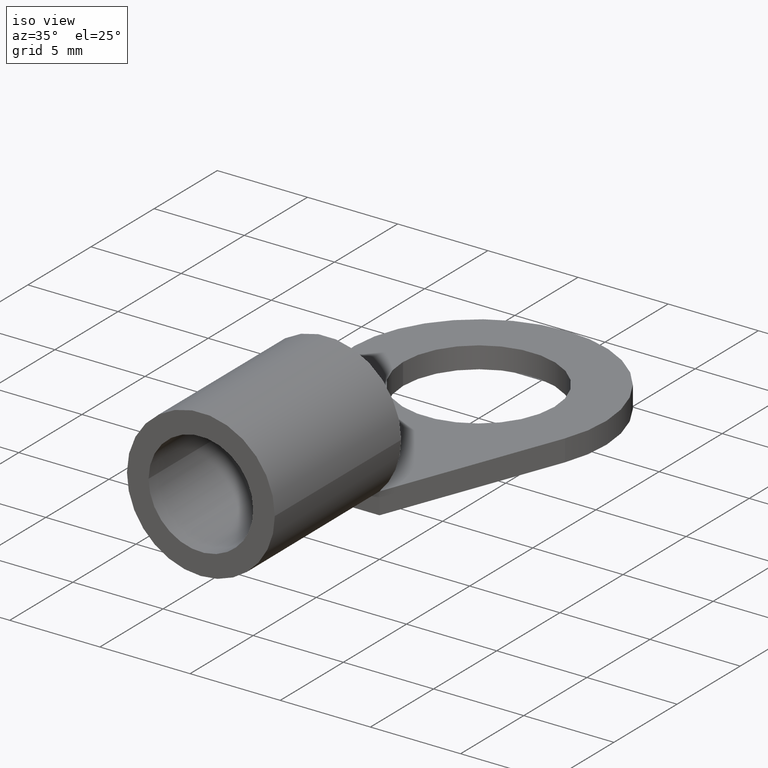
[diagram: clean part render]
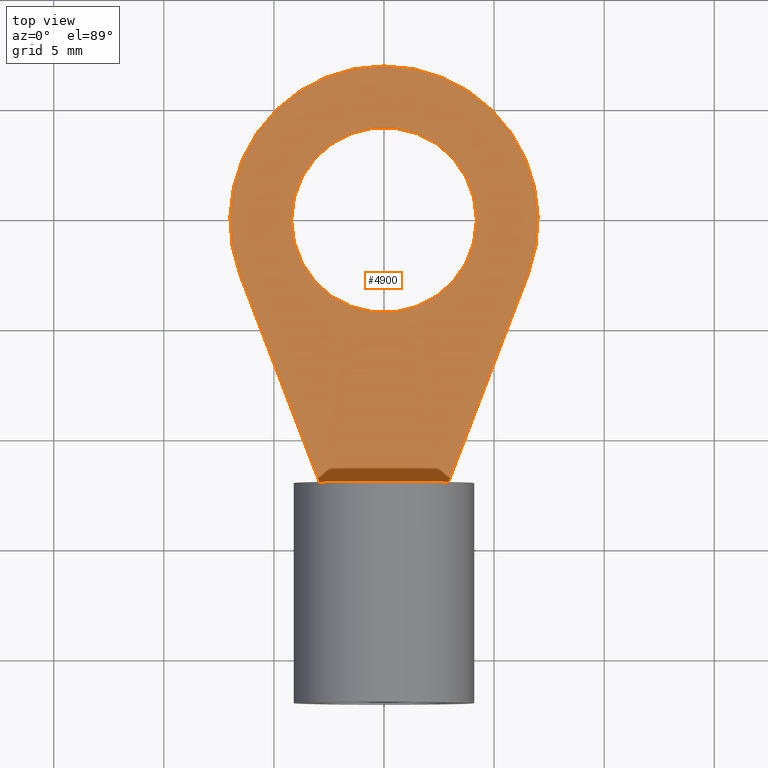
[diagram: tour spotlight — one face highlighted and labeled with its STEP entity id]
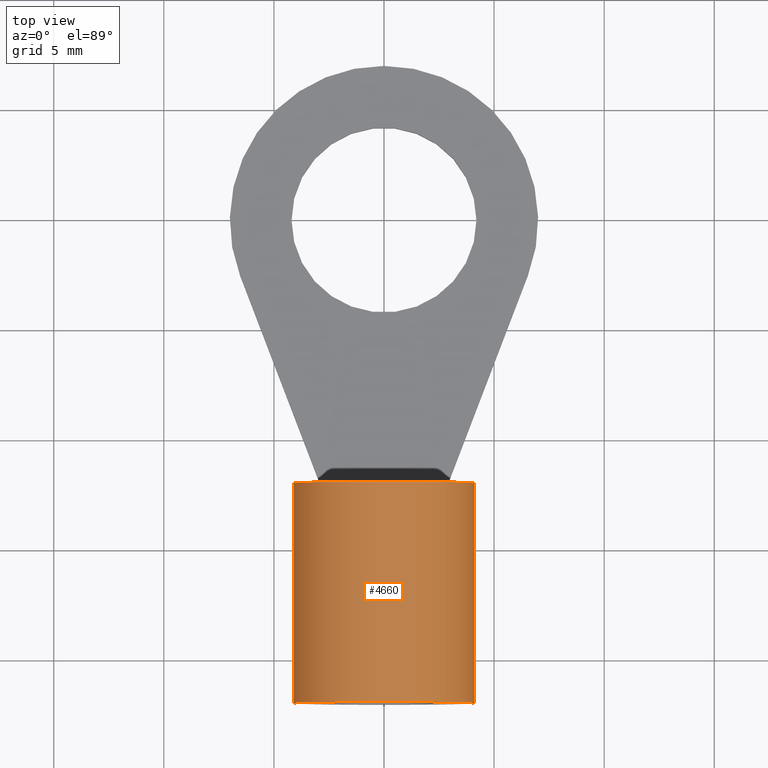
[diagram: tour spotlight — one face highlighted and labeled with its STEP entity id]
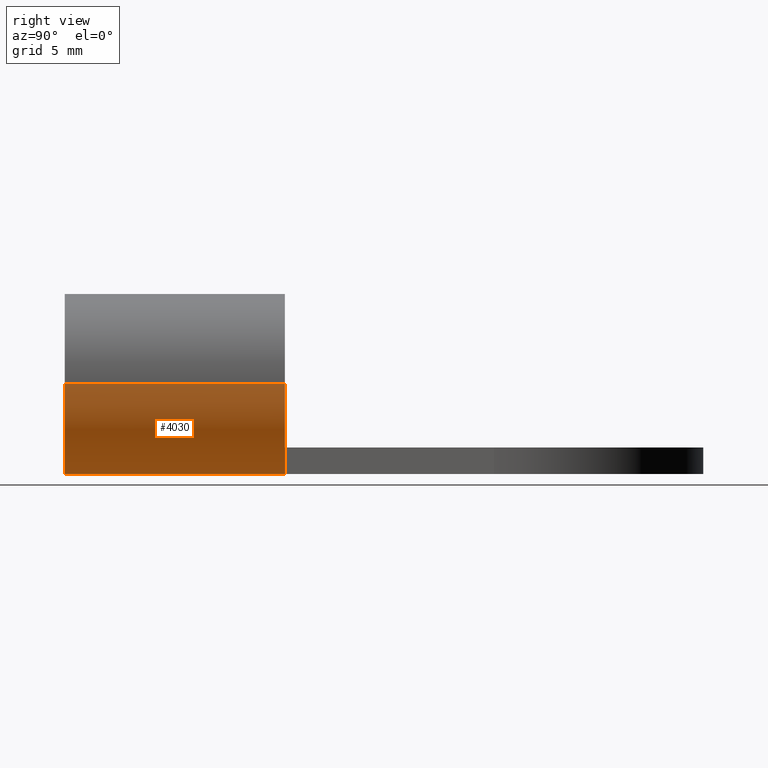
[diagram: tour spotlight — one face highlighted and labeled with its STEP entity id]
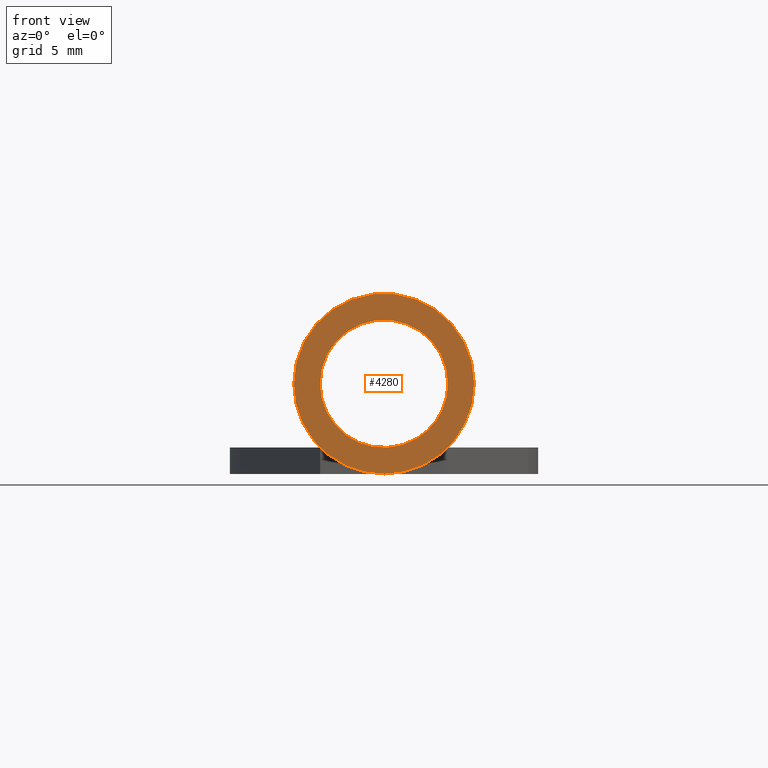
[diagram: tour spotlight — one face highlighted and labeled with its STEP entity id]
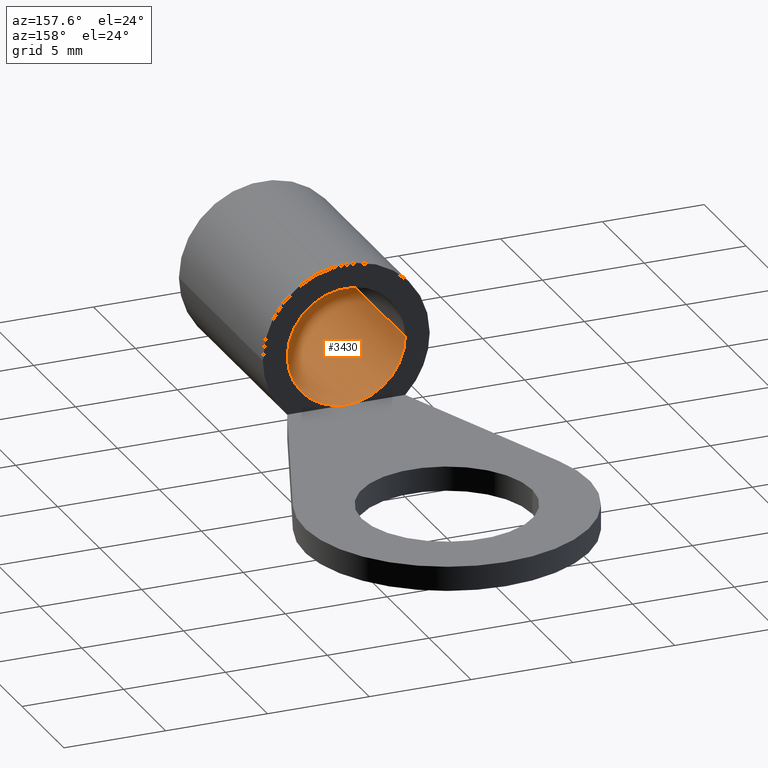
[diagram: tour spotlight — one face highlighted and labeled with its STEP entity id]
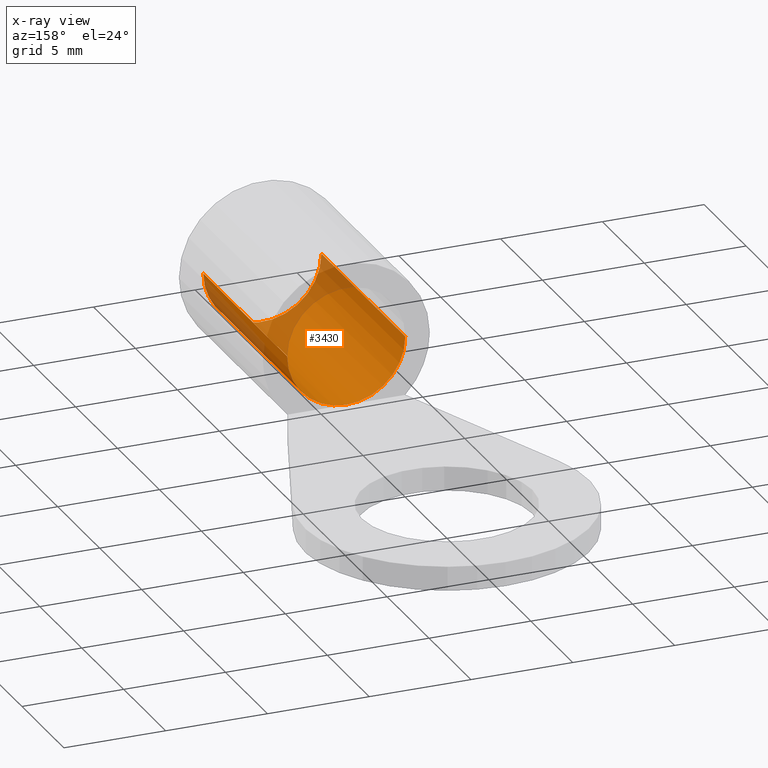
[diagram: x-ray of the same camera — body ghosted, this tour face saturated]
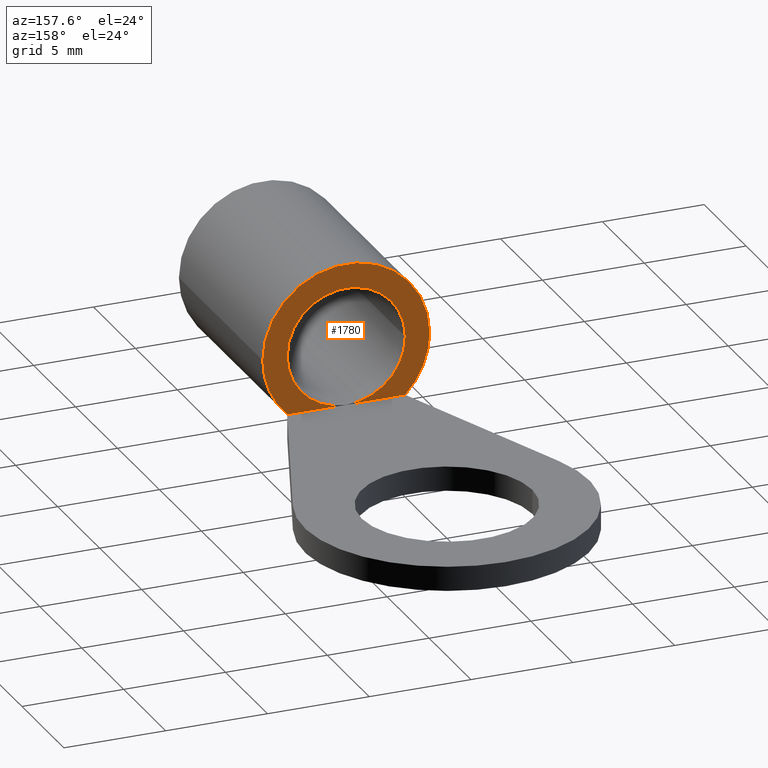
[diagram: tour spotlight — one face highlighted and labeled with its STEP entity id]
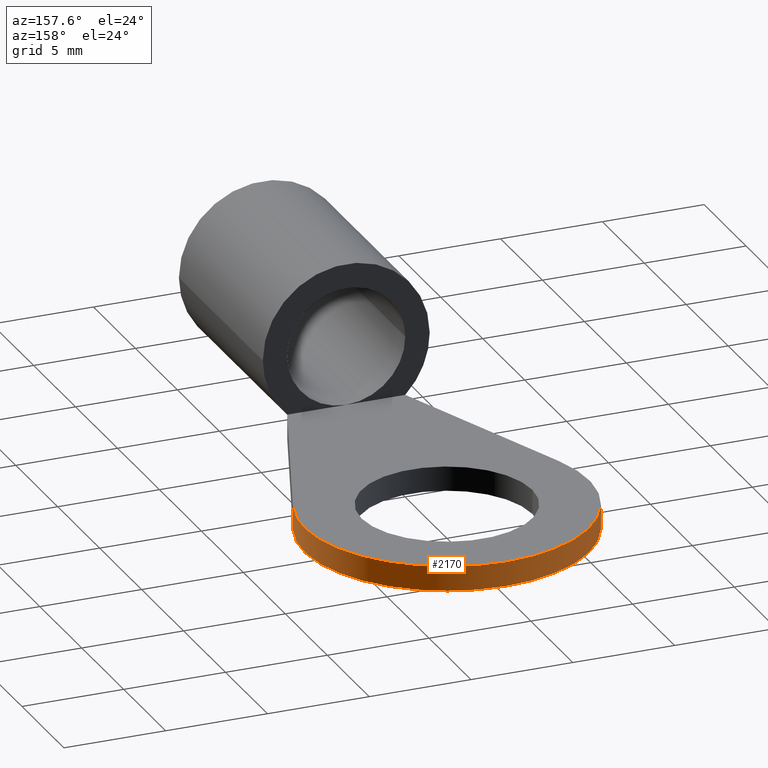
[diagram: tour spotlight — one face highlighted and labeled with its STEP entity id]
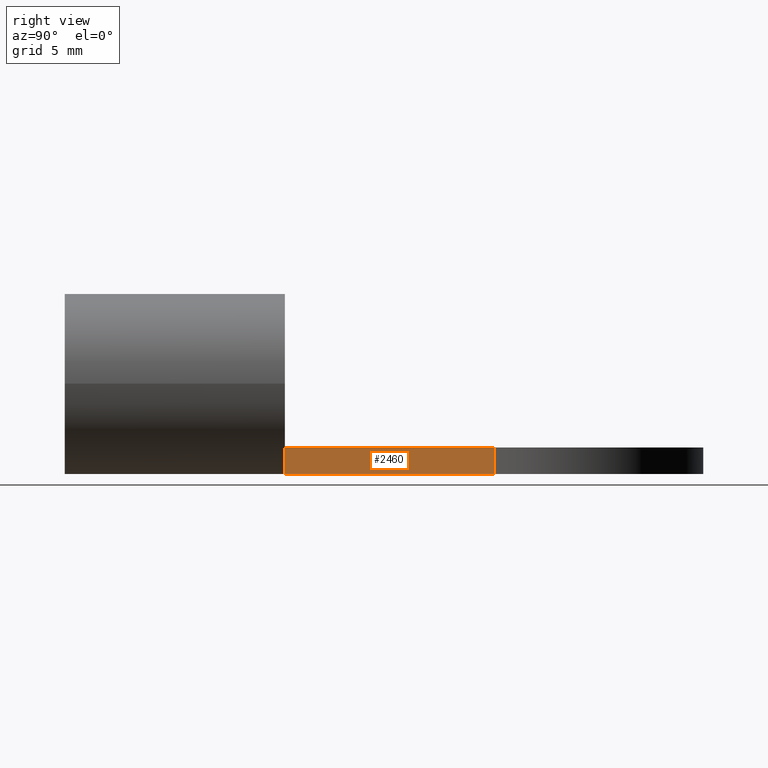
[diagram: tour spotlight — one face highlighted and labeled with its STEP entity id]
A machine part: a face-by-face anatomy tour. The part has 15 B-rep faces; the first image is the clean iso view, then the 8 largest visible faces are spotlighted one at a time (largest first), each with its STEP entity span.

Face 1 — top view, entity #4900. In plain terms, the highlighted planar face has unit normal (0, -0, -1).
Definition (entity closure, byte-faithful):
#120=CARTESIAN_POINT('',(8.19005202557302,214.095395351223,
127.011534287231));
#130=VERTEX_POINT('',#120);
#160=CARTESIAN_POINT('',(7.55918008017284,210.003085372182,
126.307972190502));
#170=DIRECTION('',(-5.91634389396356E-9,0.169437138749457,
-0.985540996616781));
#180=DIRECTION('',(0.150207606047662,0.974359518819137,0.167514784935453
));
#190=AXIS2_PLACEMENT_3D('',#160,#170,#180);
#200=CIRCLE('',#190,4.2);
#210=CARTESIAN_POINT('',(6.92830813477266,205.910775393142,
125.604410093773));
#220=VERTEX_POINT('',#210);
#230=EDGE_CURVE('',#220,#130,#200,.T.);
#1140=EDGE_CURVE('',#130,#220,#200,.T.);
#1430=CARTESIAN_POINT('',(-4.30467364500014,211.779514405453,
126.613381223524));
#1440=VERTEX_POINT('',#1430);
#1470=CARTESIAN_POINT('',(-36.9631262520451,-0.0677748554997828,
90.1919654993604));
#1480=DIRECTION('',(-0.150207606047678,-0.974359518819134,
-0.167514784935453));
#1490=VECTOR('',#1480,1.);
#1500=LINE('',#1470,#1490);
#1510=CARTESIAN_POINT('',(-3.86907158746191,214.605157010029,
127.099174099836));
#1520=VERTEX_POINT('',#1510);
#1530=EDGE_CURVE('',#1520,#1440,#1500,.T.);
#1680=CARTESIAN_POINT('',(-4.74027570253843,208.953871800878,
126.127588347211));
#1690=VERTEX_POINT('',#1680);
#1720=EDGE_CURVE('',#1440,#1690,#1500,.T.);
#1950=CARTESIAN_POINT('',(4.10211750838229,204.004328097907,
125.276648022719));
#1960=VERTEX_POINT('',#1950);
#2040=CARTESIAN_POINT('',(6.06592736087541,216.74307597676,
127.466731426285));
#2050=VERTEX_POINT('',#2040);
#2080=CARTESIAN_POINT('',(7.55918008017284,210.003085372182,
126.307972190502));
#2090=DIRECTION('',(-5.91634389571428E-9,0.169437138749457,
-0.985540996616781));
#2100=DIRECTION('',(1.,5.42947599304575E-9,-5.06969170810309E-9));
#2110=AXIS2_PLACEMENT_3D('',#2080,#2090,#2100);
#2120=CIRCLE('',#2110,7.);
#2130=EDGE_CURVE('',#2050,#1960,#2120,.T.);
#2380=CARTESIAN_POINT('',(0.,215.437745073046,127.242315092193));
#2390=DIRECTION('',(0.976981986719146,0.210237397147532,
0.0361446326159286));
#2400=VECTOR('',#2390,1.);
#2410=LINE('',#2380,#2400);
#2420=EDGE_CURVE('',#1520,#2050,#2410,.T.);
#2670=CARTESIAN_POINT('',(0.,206.300494915889,125.671411874588));
#2680=DIRECTION('',(-0.869537976951975,0.486725269466766,
0.0836792608761059));
#2690=VECTOR('',#2680,1.);
#2700=LINE('',#2670,#2690);
#2710=EDGE_CURVE('',#1960,#1690,#2700,.T.);
#4740=CARTESIAN_POINT('',(7.72299772201758,212.279594310728,
126.699356375675));
#4750=DIRECTION('',(5.91634389036865E-9,-0.169437138749457,
0.985540996616781));
#4760=DIRECTION('',(1.,5.42947597823552E-9,-5.06969170522524E-9));
#4770=AXIS2_PLACEMENT_3D('',#4740,#4750,#4760);
#4780=PLANE('',#4770);
#4790=ORIENTED_EDGE('',*,*,#2420,.T.);
#4800=ORIENTED_EDGE('',*,*,#1530,.F.);
#4810=ORIENTED_EDGE('',*,*,#1720,.F.);
#4820=ORIENTED_EDGE('',*,*,#2710,.T.);
#4830=ORIENTED_EDGE('',*,*,#2130,.T.);
#4840=EDGE_LOOP('',(#4830,#4820,#4810,#4800,#4790));
#4850=FACE_OUTER_BOUND('',#4840,.T.);
#4860=ORIENTED_EDGE('',*,*,#1140,.F.);
#4870=ORIENTED_EDGE('',*,*,#230,.F.);
#4880=EDGE_LOOP('',(#4870,#4860));
#4890=FACE_BOUND('',#4880,.T.);
#4900=ADVANCED_FACE('',(#4850,#4890),#4780,.F.);

Face 2 — top view, entity #4660. In plain terms, the highlighted cylindrical surface (partial cylindrical patch) has radius 4.1 mm, axis along (0, -1, -0).
Definition (entity closure, byte-faithful):
#1550=CARTESIAN_POINT('',(-4.30467366215757,212.270882107827,
123.755312333335));
#1560=DIRECTION('',(-0.98865447709775,0.148035752772574,
0.0254507527517702));
#1570=DIRECTION('',(0.150207606047678,0.974359518819134,
0.167514784935453));
#1580=AXIS2_PLACEMENT_3D('',#1550,#1560,#1570);
#1590=CIRCLE('',#1580,4.1);
#1600=CARTESIAN_POINT('',(-3.68882247736209,216.265756134985,
124.44212295157));
#1610=VERTEX_POINT('',#1600);
#1640=CARTESIAN_POINT('',(-4.92052484695305,208.276008080668,
123.068501715099));
#1650=VERTEX_POINT('',#1640);
#1660=EDGE_CURVE('',#1610,#1650,#1590,.T.);
#3700=CARTESIAN_POINT('',(-14.1912184331351,213.751239635553,
124.009819860852));
#3710=DIRECTION('',(-0.98865447709775,0.148035752772574,
0.0254507527517702));
#3720=DIRECTION('',(0.150207606047678,0.974359518819134,
0.167514784935453));
#3730=AXIS2_PLACEMENT_3D('',#3700,#3710,#3720);
#3740=CIRCLE('',#3730,4.1);
#3770=CARTESIAN_POINT('',(-13.5753672483396,217.746113662711,
124.696630479088));
#3780=VERTEX_POINT('',#3770);
#3810=CARTESIAN_POINT('',(-3.68882247736209,216.265756134985,
124.44212295157));
#3820=DIRECTION('',(-0.98865447709775,0.148035752772574,
0.0254507527517702));
#3830=VECTOR('',#3820,1.);
#3840=LINE('',#3810,#3830);
#3850=EDGE_CURVE('',#1610,#3780,#3840,.T.);
#3910=CARTESIAN_POINT('',(-4.92052484695305,208.276008080668,
123.068501715099));
#3920=DIRECTION('',(-0.98865447709775,0.148035752772574,
0.0254507527517702));
#3930=VECTOR('',#3920,1.);
#3940=LINE('',#3910,#3930);
#3950=CARTESIAN_POINT('',(-14.8070696179306,209.756365608394,
123.323009242617));
#3960=VERTEX_POINT('',#3950);
#3970=EDGE_CURVE('',#1650,#3960,#3940,.T.);
#4160=EDGE_CURVE('',#3780,#3960,#3740,.T.);
#4550=CARTESIAN_POINT('',(-4.30467366215757,212.270882107827,
123.755312333335));
#4560=DIRECTION('',(-0.98865447709775,0.148035752772574,
0.0254507527517702));
#4570=DIRECTION('',(0.150207606047678,0.974359518819134,
0.167514784935453));
#4580=AXIS2_PLACEMENT_3D('',#4550,#4560,#4570);
#4590=CYLINDRICAL_SURFACE('',#4580,4.1);
#4600=ORIENTED_EDGE('',*,*,#1660,.T.);
#4610=ORIENTED_EDGE('',*,*,#3850,.F.);
#4620=ORIENTED_EDGE('',*,*,#4160,.F.);
#4630=ORIENTED_EDGE('',*,*,#3970,.T.);
#4640=EDGE_LOOP('',(#4630,#4620,#4610,#4600));
#4650=FACE_OUTER_BOUND('',#4640,.T.);
#4660=ADVANCED_FACE('',(#4650),#4590,.T.);

Face 3 — right view, entity #4030. In plain terms, the highlighted cylindrical surface (partial cylindrical patch) has radius 4.1 mm, axis along (0, -1, -0).
Definition (entity closure, byte-faithful):
#610=CARTESIAN_POINT('',(-4.30467363790056,211.576189838954,
127.796030419464));
#620=VERTEX_POINT('',#610);
#1510=CARTESIAN_POINT('',(-3.86907158746191,214.605157010029,
127.099174099836));
#1520=VERTEX_POINT('',#1510);
#1550=CARTESIAN_POINT('',(-4.30467366215757,212.270882107827,
123.755312333335));
#1560=DIRECTION('',(-0.98865447709775,0.148035752772574,
0.0254507527517702));
#1570=DIRECTION('',(0.150207606047678,0.974359518819134,
0.167514784935453));
#1580=AXIS2_PLACEMENT_3D('',#1550,#1560,#1570);
#1590=CIRCLE('',#1580,4.1);
#1600=CARTESIAN_POINT('',(-3.68882247736209,216.265756134985,
124.44212295157));
#1610=VERTEX_POINT('',#1600);
#1620=EDGE_CURVE('',#1520,#1610,#1590,.T.);
#1640=CARTESIAN_POINT('',(-4.92052484695305,208.276008080668,
123.068501715099));
#1650=VERTEX_POINT('',#1640);
#1680=CARTESIAN_POINT('',(-4.74027570253843,208.953871800878,
126.127588347211));
#1690=VERTEX_POINT('',#1680);
#1700=EDGE_CURVE('',#1650,#1690,#1590,.T.);
#2900=CARTESIAN_POINT('',(-4.30467366215756,212.270882107827,
123.755312333335));
#2910=DIRECTION('',(-0.98865447709775,0.148035752772574,
0.0254507527517702));
#2920=DIRECTION('',(0.150207606047678,0.974359518819134,
0.167514784935453));
#2930=AXIS2_PLACEMENT_3D('',#2900,#2910,#2920);
#2940=CIRCLE('',#2930,4.1);
#2950=EDGE_CURVE('',#1690,#620,#2940,.T.);
#3530=EDGE_CURVE('',#620,#1520,#2940,.T.);
#3650=CARTESIAN_POINT('',(-4.30467366215757,212.270882107827,
123.755312333335));
#3660=DIRECTION('',(-0.98865447709775,0.148035752772574,
0.0254507527517702));
#3670=DIRECTION('',(0.150207606047678,0.974359518819134,
0.167514784935453));
#3680=AXIS2_PLACEMENT_3D('',#3650,#3660,#3670);
#3690=CYLINDRICAL_SURFACE('',#3680,4.1);
#3700=CARTESIAN_POINT('',(-14.1912184331351,213.751239635553,
124.009819860852));
#3710=DIRECTION('',(-0.98865447709775,0.148035752772574,
0.0254507527517702));
#3720=DIRECTION('',(0.150207606047678,0.974359518819134,
0.167514784935453));
#3730=AXIS2_PLACEMENT_3D('',#3700,#3710,#3720);
#3740=CIRCLE('',#3730,4.1);
#3750=CARTESIAN_POINT('',(-14.1912184088781,213.05654736668,
128.050537946981));
#3760=VERTEX_POINT('',#3750);
#3770=CARTESIAN_POINT('',(-13.5753672483396,217.746113662711,
124.696630479088));
#3780=VERTEX_POINT('',#3770);
#3790=EDGE_CURVE('',#3760,#3780,#3740,.T.);
#3800=ORIENTED_EDGE('',*,*,#3790,.F.);
#3810=CARTESIAN_POINT('',(-3.68882247736209,216.265756134985,
124.44212295157));
#3820=DIRECTION('',(-0.98865447709775,0.148035752772574,
0.0254507527517702));
#3830=VECTOR('',#3820,1.);
#3840=LINE('',#3810,#3830);
#3850=EDGE_CURVE('',#1610,#3780,#3840,.T.);
#3860=ORIENTED_EDGE('',*,*,#3850,.T.);
#3870=ORIENTED_EDGE('',*,*,#1620,.T.);
#3880=ORIENTED_EDGE('',*,*,#3530,.T.);
#3890=ORIENTED_EDGE('',*,*,#2950,.T.);
#3900=ORIENTED_EDGE('',*,*,#1700,.T.);
#3910=CARTESIAN_POINT('',(-4.92052484695305,208.276008080668,
123.068501715099));
#3920=DIRECTION('',(-0.98865447709775,0.148035752772574,
0.0254507527517702));
#3930=VECTOR('',#3920,1.);
#3940=LINE('',#3910,#3930);
#3950=CARTESIAN_POINT('',(-14.8070696179306,209.756365608394,
123.323009242617));
#3960=VERTEX_POINT('',#3950);
#3970=EDGE_CURVE('',#1650,#3960,#3940,.T.);
#3980=ORIENTED_EDGE('',*,*,#3970,.F.);
#3990=EDGE_CURVE('',#3960,#3760,#3740,.T.);
#4000=ORIENTED_EDGE('',*,*,#3990,.F.);
#4010=EDGE_LOOP('',(#4000,#3980,#3900,#3890,#3880,#3870,#3860,#3800));
#4020=FACE_OUTER_BOUND('',#4010,.T.);
#4030=ADVANCED_FACE('',(#4020),#3690,.T.);

Face 4 — front view, entity #4280. In plain terms, the highlighted planar face has unit normal (0, -1, -0).
Definition (entity closure, byte-faithful):
#3160=CARTESIAN_POINT('',(-14.6268204906733,210.925597030977,
123.52402698454));
#3170=VERTEX_POINT('',#3160);
#3260=CARTESIAN_POINT('',(-13.7556163755968,216.576882240128,
124.495612737165));
#3270=VERTEX_POINT('',#3260);
#3300=CARTESIAN_POINT('',(-14.1912184331351,213.751239635553,
124.009819860852));
#3310=DIRECTION('',(-0.98865447709775,0.148035752772574,
0.0254507527517702));
#3320=DIRECTION('',(0.150207606047678,0.974359518819134,
0.167514784935453));
#3330=AXIS2_PLACEMENT_3D('',#3300,#3310,#3320);
#3340=CIRCLE('',#3330,2.9);
#3350=CARTESIAN_POINT('',(-13.9704592241632,214.759656976957,
126.719867800873));
#3360=VERTEX_POINT('',#3350);
#3370=EDGE_CURVE('',#3360,#3270,#3340,.T.);
#3390=EDGE_CURVE('',#3170,#3360,#3340,.T.);
#3700=CARTESIAN_POINT('',(-14.1912184331351,213.751239635553,
124.009819860852));
#3710=DIRECTION('',(-0.98865447709775,0.148035752772574,
0.0254507527517702));
#3720=DIRECTION('',(0.150207606047678,0.974359518819134,
0.167514784935453));
#3730=AXIS2_PLACEMENT_3D('',#3700,#3710,#3720);
#3740=CIRCLE('',#3730,4.1);
#3750=CARTESIAN_POINT('',(-14.1912184088781,213.05654736668,
128.050537946981));
#3760=VERTEX_POINT('',#3750);
#3770=CARTESIAN_POINT('',(-13.5753672483396,217.746113662711,
124.696630479088));
#3780=VERTEX_POINT('',#3770);
#3790=EDGE_CURVE('',#3760,#3780,#3740,.T.);
#3950=CARTESIAN_POINT('',(-14.8070696179306,209.756365608394,
123.323009242617));
#3960=VERTEX_POINT('',#3950);
#3990=EDGE_CURVE('',#3960,#3760,#3740,.T.);
#4110=CARTESIAN_POINT('',(-14.1912184136111,213.192097077679,
127.262105149688));
#4120=DIRECTION('',(-0.98865447709775,0.148035752772574,
0.0254507527517702));
#4130=DIRECTION('',(0.150207606047678,0.974359518819134,
0.167514784935453));
#4140=AXIS2_PLACEMENT_3D('',#4110,#4120,#4130);
#4150=PLANE('',#4140);
#4160=EDGE_CURVE('',#3780,#3960,#3740,.T.);
#4170=ORIENTED_EDGE('',*,*,#4160,.T.);
#4180=ORIENTED_EDGE('',*,*,#3790,.T.);
#4190=ORIENTED_EDGE('',*,*,#3990,.T.);
#4200=EDGE_LOOP('',(#4190,#4180,#4170));
#4210=FACE_OUTER_BOUND('',#4200,.T.);
#4220=ORIENTED_EDGE('',*,*,#3370,.F.);
#4230=EDGE_CURVE('',#3270,#3170,#3340,.T.);
#4240=ORIENTED_EDGE('',*,*,#4230,.F.);
#4250=ORIENTED_EDGE('',*,*,#3390,.F.);
#4260=EDGE_LOOP('',(#4250,#4240,#4220));
#4270=FACE_BOUND('',#4260,.T.);
#4280=ADVANCED_FACE('',(#4210,#4270),#4150,.T.);

Face 5 — auxiliary view, entity #3430. An x-ray twin of the same camera follows (body ghosted, this face saturated) — the face is partly hidden behind the body. In plain terms, the highlighted cylindrical surface (partial cylindrical patch) has radius 2.9 mm, axis along (0, -1, -0).
Definition (entity closure, byte-faithful):
#1320=CARTESIAN_POINT('',(-4.30467366215757,212.270882107827,
123.755312333335));
#1330=DIRECTION('',(-0.98865447709775,0.148035752772574,
0.0254507527517702));
#1340=DIRECTION('',(0.150207606047678,0.974359518819134,
0.167514784935453));
#1350=AXIS2_PLACEMENT_3D('',#1320,#1330,#1340);
#1360=CIRCLE('',#1350,2.9);
#1370=CARTESIAN_POINT('',(-3.8690716046193,215.096524712402,
124.241105209648));
#1380=VERTEX_POINT('',#1370);
#1390=CARTESIAN_POINT('',(-4.74027571969584,209.445239503251,
123.269519457022));
#1400=VERTEX_POINT('',#1390);
#1430=CARTESIAN_POINT('',(-4.30467364500014,211.779514405453,
126.613381223524));
#1440=VERTEX_POINT('',#1430);
#1450=EDGE_CURVE('',#1440,#1380,#1360,.T.);
#1740=EDGE_CURVE('',#1400,#1440,#1360,.T.);
#3070=CARTESIAN_POINT('',(-4.30467366215757,212.270882107827,
123.755312333335));
#3080=DIRECTION('',(-0.98865447709775,0.148035752772574,
0.0254507527517702));
#3090=DIRECTION('',(0.150207606047678,0.974359518819134,
0.167514784935453));
#3100=AXIS2_PLACEMENT_3D('',#3070,#3080,#3090);
#3110=CYLINDRICAL_SURFACE('',#3100,2.9);
#3120=CARTESIAN_POINT('',(-4.74027571969584,209.445239503251,
123.269519457022));
#3130=DIRECTION('',(-0.98865447709775,0.148035752772574,
0.0254507527517702));
#3140=VECTOR('',#3130,1.);
#3150=LINE('',#3120,#3140);
#3160=CARTESIAN_POINT('',(-14.6268204906733,210.925597030977,
123.52402698454));
#3170=VERTEX_POINT('',#3160);
#3180=EDGE_CURVE('',#1400,#3170,#3150,.T.);
#3190=ORIENTED_EDGE('',*,*,#3180,.T.);
#3200=ORIENTED_EDGE('',*,*,#1740,.F.);
#3210=ORIENTED_EDGE('',*,*,#1450,.F.);
#3220=CARTESIAN_POINT('',(-3.8690716046193,215.096524712402,
124.241105209648));
#3230=DIRECTION('',(-0.98865447709775,0.148035752772574,
0.0254507527517702));
#3240=VECTOR('',#3230,1.);
#3250=LINE('',#3220,#3240);
#3260=CARTESIAN_POINT('',(-13.7556163755968,216.576882240128,
124.495612737165));
#3270=VERTEX_POINT('',#3260);
#3280=EDGE_CURVE('',#1380,#3270,#3250,.T.);
#3290=ORIENTED_EDGE('',*,*,#3280,.F.);
#3300=CARTESIAN_POINT('',(-14.1912184331351,213.751239635553,
124.009819860852));
#3310=DIRECTION('',(-0.98865447709775,0.148035752772574,
0.0254507527517702));
#3320=DIRECTION('',(0.150207606047678,0.974359518819134,
0.167514784935453));
#3330=AXIS2_PLACEMENT_3D('',#3300,#3310,#3320);
#3340=CIRCLE('',#3330,2.9);
#3350=CARTESIAN_POINT('',(-13.9704592241632,214.759656976957,
126.719867800873));
#3360=VERTEX_POINT('',#3350);
#3370=EDGE_CURVE('',#3360,#3270,#3340,.T.);
#3380=ORIENTED_EDGE('',*,*,#3370,.T.);
#3390=EDGE_CURVE('',#3170,#3360,#3340,.T.);
#3400=ORIENTED_EDGE('',*,*,#3390,.T.);
#3410=EDGE_LOOP('',(#3400,#3380,#3290,#3210,#3200,#3190));
#3420=FACE_OUTER_BOUND('',#3410,.T.);
#3430=ADVANCED_FACE('',(#3420),#3110,.F.);

Face 6 — auxiliary view, entity #1780. In plain terms, the highlighted planar face has unit normal (0, -1, -0).
Definition (entity closure, byte-faithful):
#1270=CARTESIAN_POINT('',(-4.30467364263362,211.711739549954,
127.00759762217));
#1280=DIRECTION('',(-0.98865447709775,0.148035752772574,
0.0254507527517702));
#1290=DIRECTION('',(0.150207606047678,0.974359518819134,
0.167514784935453));
#1300=AXIS2_PLACEMENT_3D('',#1270,#1280,#1290);
#1310=PLANE('',#1300);
#1320=CARTESIAN_POINT('',(-4.30467366215757,212.270882107827,
123.755312333335));
#1330=DIRECTION('',(-0.98865447709775,0.148035752772574,
0.0254507527517702));
#1340=DIRECTION('',(0.150207606047678,0.974359518819134,
0.167514784935453));
#1350=AXIS2_PLACEMENT_3D('',#1320,#1330,#1340);
#1360=CIRCLE('',#1350,2.9);
#1370=CARTESIAN_POINT('',(-3.8690716046193,215.096524712402,
124.241105209648));
#1380=VERTEX_POINT('',#1370);
#1390=CARTESIAN_POINT('',(-4.74027571969584,209.445239503251,
123.269519457022));
#1400=VERTEX_POINT('',#1390);
#1410=EDGE_CURVE('',#1380,#1400,#1360,.T.);
#1420=ORIENTED_EDGE('',*,*,#1410,.T.);
#1430=CARTESIAN_POINT('',(-4.30467364500014,211.779514405453,
126.613381223524));
#1440=VERTEX_POINT('',#1430);
#1450=EDGE_CURVE('',#1440,#1380,#1360,.T.);
#1460=ORIENTED_EDGE('',*,*,#1450,.T.);
#1470=CARTESIAN_POINT('',(-36.9631262520451,-0.0677748554997828,
90.1919654993604));
#1480=DIRECTION('',(-0.150207606047678,-0.974359518819134,
-0.167514784935453));
#1490=VECTOR('',#1480,1.);
#1500=LINE('',#1470,#1490);
#1510=CARTESIAN_POINT('',(-3.86907158746191,214.605157010029,
127.099174099836));
#1520=VERTEX_POINT('',#1510);
#1530=EDGE_CURVE('',#1520,#1440,#1500,.T.);
#1540=ORIENTED_EDGE('',*,*,#1530,.T.);
#1550=CARTESIAN_POINT('',(-4.30467366215757,212.270882107827,
123.755312333335));
#1560=DIRECTION('',(-0.98865447709775,0.148035752772574,
0.0254507527517702));
#1570=DIRECTION('',(0.150207606047678,0.974359518819134,
0.167514784935453));
#1580=AXIS2_PLACEMENT_3D('',#1550,#1560,#1570);
#1590=CIRCLE('',#1580,4.1);
#1600=CARTESIAN_POINT('',(-3.68882247736209,216.265756134985,
124.44212295157));
#1610=VERTEX_POINT('',#1600);
#1620=EDGE_CURVE('',#1520,#1610,#1590,.T.);
#1630=ORIENTED_EDGE('',*,*,#1620,.F.);
#1640=CARTESIAN_POINT('',(-4.92052484695305,208.276008080668,
123.068501715099));
#1650=VERTEX_POINT('',#1640);
#1660=EDGE_CURVE('',#1610,#1650,#1590,.T.);
#1670=ORIENTED_EDGE('',*,*,#1660,.F.);
#1680=CARTESIAN_POINT('',(-4.74027570253843,208.953871800878,
126.127588347211));
#1690=VERTEX_POINT('',#1680);
#1700=EDGE_CURVE('',#1650,#1690,#1590,.T.);
#1710=ORIENTED_EDGE('',*,*,#1700,.F.);
#1720=EDGE_CURVE('',#1440,#1690,#1500,.T.);
#1730=ORIENTED_EDGE('',*,*,#1720,.T.);
#1740=EDGE_CURVE('',#1400,#1440,#1360,.T.);
#1750=ORIENTED_EDGE('',*,*,#1740,.T.);
#1760=EDGE_LOOP('',(#1750,#1730,#1710,#1670,#1630,#1540,#1460,#1420));
#1770=FACE_OUTER_BOUND('',#1760,.T.);
#1780=ADVANCED_FACE('',(#1770),#1310,.F.);

Face 7 — auxiliary view, entity #2170. In plain terms, the highlighted cylindrical surface (partial cylindrical patch) has radius 7 mm, axis along (-0, 0, 1).
Definition (entity closure, byte-faithful):
#730=CARTESIAN_POINT('',(6.06592736797502,216.539751410261,
128.649380622225));
#740=VERTEX_POINT('',#730);
#770=CARTESIAN_POINT('',(7.55918008727245,209.799760805683,
127.490621386442));
#780=DIRECTION('',(-5.91634389571428E-9,0.169437138749457,
-0.985540996616781));
#790=DIRECTION('',(1.,5.42947599304575E-9,-5.06969170810309E-9));
#800=AXIS2_PLACEMENT_3D('',#770,#780,#790);
#810=CIRCLE('',#800,7.);
#820=CARTESIAN_POINT('',(4.10211751548192,203.801003531408,
126.459297218659));
#830=VERTEX_POINT('',#820);
#840=EDGE_CURVE('',#740,#830,#810,.T.);
#1860=CARTESIAN_POINT('',(7.5591800778063,210.070860227682,
125.913755791856));
#1870=DIRECTION('',(-5.91634389571428E-9,0.169437138749457,
-0.985540996616781));
#1880=DIRECTION('',(1.,5.42947599197708E-9,-5.06969170188712E-9));
#1890=AXIS2_PLACEMENT_3D('',#1860,#1870,#1880);
#1900=CYLINDRICAL_SURFACE('',#1890,7.);
#1910=CARTESIAN_POINT('',(4.10211750601575,204.072102953407,
124.882431624072));
#1920=DIRECTION('',(5.91634389571428E-9,-0.169437138749457,
0.985540996616781));
#1930=VECTOR('',#1920,1.);
#1940=LINE('',#1910,#1930);
#1950=CARTESIAN_POINT('',(4.10211750838229,204.004328097907,
125.276648022719));
#1960=VERTEX_POINT('',#1950);
#1970=EDGE_CURVE('',#1960,#830,#1940,.T.);
#1980=ORIENTED_EDGE('',*,*,#1970,.F.);
#1990=ORIENTED_EDGE('',*,*,#840,.T.);
#2000=CARTESIAN_POINT('',(6.06592735850887,216.81085083226,
127.072515027639));
#2010=DIRECTION('',(5.91634389571428E-9,-0.169437138749457,
0.985540996616781));
#2020=VECTOR('',#2010,1.);
#2030=LINE('',#2000,#2020);
#2040=CARTESIAN_POINT('',(6.06592736087541,216.74307597676,
127.466731426285));
#2050=VERTEX_POINT('',#2040);
#2060=EDGE_CURVE('',#2050,#740,#2030,.T.);
#2070=ORIENTED_EDGE('',*,*,#2060,.T.);
#2080=CARTESIAN_POINT('',(7.55918008017284,210.003085372182,
126.307972190502));
#2090=DIRECTION('',(-5.91634389571428E-9,0.169437138749457,
-0.985540996616781));
#2100=DIRECTION('',(1.,5.42947599304575E-9,-5.06969170810309E-9));
#2110=AXIS2_PLACEMENT_3D('',#2080,#2090,#2100);
#2120=CIRCLE('',#2110,7.);
#2130=EDGE_CURVE('',#2050,#1960,#2120,.T.);
#2140=ORIENTED_EDGE('',*,*,#2130,.F.);
#2150=EDGE_LOOP('',(#2140,#2070,#1990,#1980));
#2160=FACE_OUTER_BOUND('',#2150,.T.);
#2170=ADVANCED_FACE('',(#2160),#1900,.T.);

Face 8 — right view, entity #2460. In plain terms, the highlighted planar face has unit normal (0.9339, -0.3577, 0).
Definition (entity closure, byte-faithful):
#650=CARTESIAN_POINT('',(-3.86907158036227,214.40183244353,
128.281823295776));
#660=VERTEX_POINT('',#650);
#690=CARTESIAN_POINT('',(0.,215.234420505019,128.42496428787));
#700=DIRECTION('',(0.976981986719147,0.210237397147532,
0.0361446326159286));
#710=VECTOR('',#700,1.);
#720=LINE('',#690,#710);
#730=CARTESIAN_POINT('',(6.06592736797502,216.539751410261,
128.649380622225));
#740=VERTEX_POINT('',#730);
#750=EDGE_CURVE('',#660,#740,#720,.T.);
#1510=CARTESIAN_POINT('',(-3.86907158746191,214.605157010029,
127.099174099836));
#1520=VERTEX_POINT('',#1510);
#2000=CARTESIAN_POINT('',(6.06592735850887,216.81085083226,
127.072515027639));
#2010=DIRECTION('',(5.91634389571428E-9,-0.169437138749457,
0.985540996616781));
#2020=VECTOR('',#2010,1.);
#2030=LINE('',#2000,#2020);
#2040=CARTESIAN_POINT('',(6.06592736087541,216.74307597676,
127.466731426285));
#2050=VERTEX_POINT('',#2040);
#2060=EDGE_CURVE('',#2050,#740,#2030,.T.);
#2250=CARTESIAN_POINT('',(-3.86907158982843,214.672931865529,
126.70495770119));
#2260=DIRECTION('',(-0.21332181704249,0.962855800653986,
0.165537033683289));
#2270=DIRECTION('',(-0.976981986719146,-0.210237397147532,
-0.0361446326159286));
#2280=AXIS2_PLACEMENT_3D('',#2250,#2260,#2270);
#2290=PLANE('',#2280);
#2300=ORIENTED_EDGE('',*,*,#2060,.F.);
#2310=ORIENTED_EDGE('',*,*,#750,.T.);
#2320=CARTESIAN_POINT('',(-3.86907158982843,214.672931865529,
126.70495770119));
#2330=DIRECTION('',(5.91634389571428E-9,-0.169437138749457,
0.985540996616781));
#2340=VECTOR('',#2330,1.);
#2350=LINE('',#2320,#2340);
#2360=EDGE_CURVE('',#1520,#660,#2350,.T.);
#2370=ORIENTED_EDGE('',*,*,#2360,.T.);
#2380=CARTESIAN_POINT('',(0.,215.437745073046,127.242315092193));
#2390=DIRECTION('',(0.976981986719146,0.210237397147532,
0.0361446326159286));
#2400=VECTOR('',#2390,1.);
#2410=LINE('',#2380,#2400);
#2420=EDGE_CURVE('',#1520,#2050,#2410,.T.);
#2430=ORIENTED_EDGE('',*,*,#2420,.F.);
#2440=EDGE_LOOP('',(#2430,#2370,#2310,#2300));
#2450=FACE_OUTER_BOUND('',#2440,.T.);
#2460=ADVANCED_FACE('',(#2450),#2290,.T.);